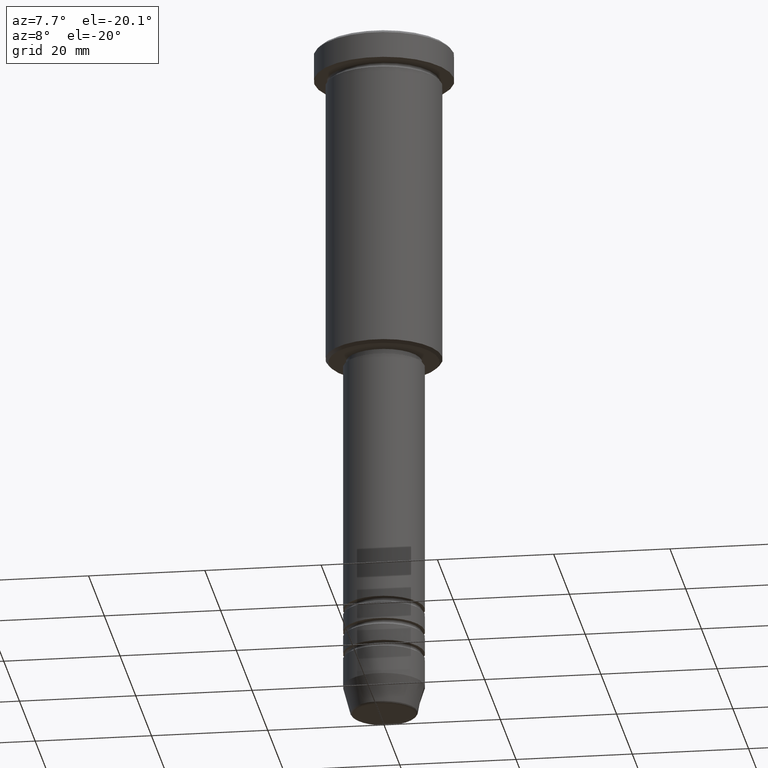
[diagram: clean part render]
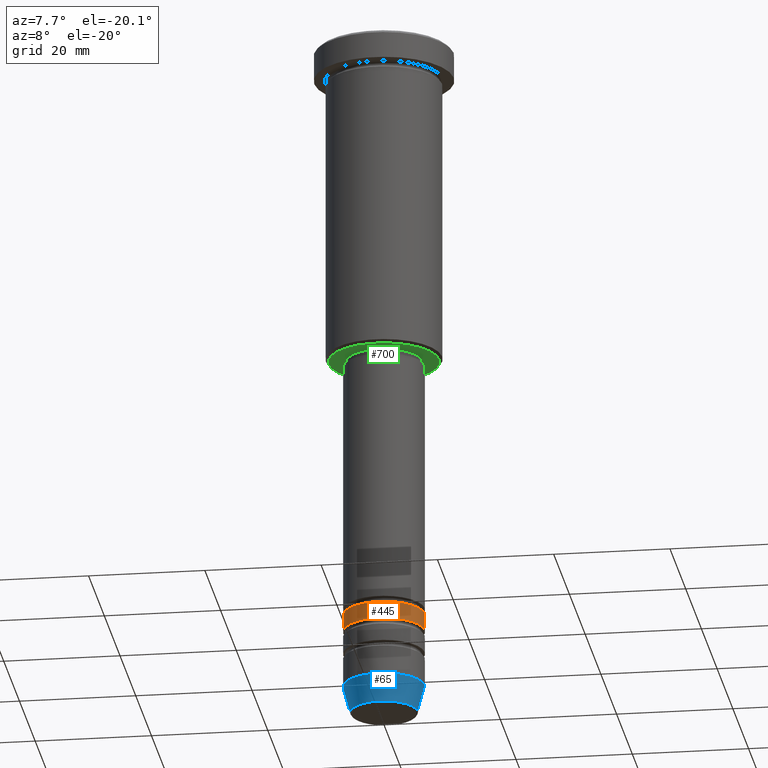
[diagram: same view with three faces highlighted in distinct colors, each labeled with its STEP entity id]
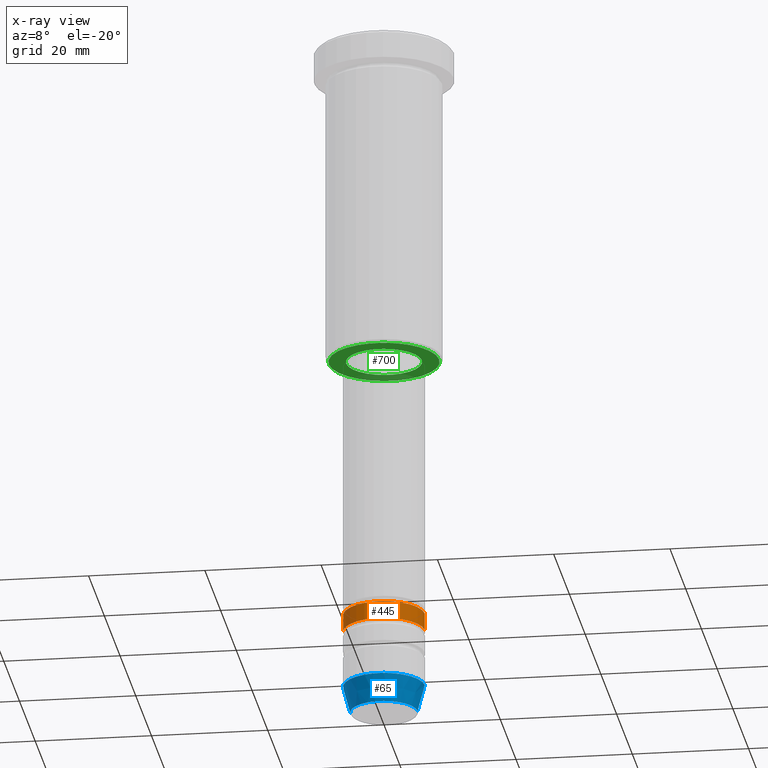
[diagram: x-ray of the same camera — body ghosted, the three highlighted faces saturated]
A machine part, auxiliary view with three faces highlighted in distinct colors.
The next image is the same camera in x-ray (body ghosted, the three faces saturated) — at least one of them is partly hidden behind the body in this view.
Their STEP definitions:

[orange] entity #445 — the highlighted cylindrical surface (partial cylindrical patch) has radius 7 mm, axis along (-0, -0, 1).
#48 = LINE ( 'NONE', #403, #692 ) ;
#76 = AXIS2_PLACEMENT_3D ( 'NONE', #1148, #420, #514 ) ;
#86 = EDGE_CURVE ( 'NONE', #784, #652, #388, .T. ) ;
#195 = DIRECTION ( 'NONE',  ( -0.000000000000000000, -0.000000000000000000, 1.000000000000000000 ) ) ;
#200 = EDGE_CURVE ( 'NONE', #319, #292, #48, .T. ) ;
#241 = CARTESIAN_POINT ( 'NONE',  ( -7.000000000000002665, 8.572527594031475162E-16, -104.9999999999999858 ) ) ;
#272 = CARTESIAN_POINT ( 'NONE',  ( 7.000000000000000000, 0.000000000000000000, -101.9999999999999858 ) ) ;
#292 = VERTEX_POINT ( 'NONE', #272 ) ;
#319 = VERTEX_POINT ( 'NONE', #991 ) ;
#386 = DIRECTION ( 'NONE',  ( 1.000000000000000000, 0.000000000000000000, 0.000000000000000000 ) ) ;
#388 = LINE ( 'NONE', #562, #962 ) ;
#403 = CARTESIAN_POINT ( 'NONE',  ( 7.000000000000000888, 0.000000000000000000, 0.000000000000000000 ) ) ;
#420 = DIRECTION ( 'NONE',  ( -0.000000000000000000, -0.000000000000000000, 1.000000000000000000 ) ) ;
#422 = CARTESIAN_POINT ( 'NONE',  ( 0.000000000000000000, 0.000000000000000000, -101.9999999999999858 ) ) ;
#438 = ORIENTED_EDGE ( 'NONE', *, *, #200, .T. ) ;
#445 = ADVANCED_FACE ( 'NONE', ( #783 ), #496, .T. ) ;
#461 = CARTESIAN_POINT ( 'NONE',  ( -7.000000000000000000, 8.572527594031473190E-16, -101.9999999999999858 ) ) ;
#462 = DIRECTION ( 'NONE',  ( -0.000000000000000000, -0.000000000000000000, 1.000000000000000000 ) ) ;
#496 = CYLINDRICAL_SURFACE ( 'NONE', #76, 7.000000000000000888 ) ;
#514 = DIRECTION ( 'NONE',  ( 1.000000000000000000, 0.000000000000000000, 0.000000000000000000 ) ) ;
#516 = DIRECTION ( 'NONE',  ( 1.000000000000000000, 0.000000000000000000, 0.000000000000000000 ) ) ;
#531 = EDGE_CURVE ( 'NONE', #652, #292, #830, .T. ) ;
#534 = EDGE_LOOP ( 'NONE', ( #906, #993, #438, #682 ) ) ;
#550 = CIRCLE ( 'NONE', #568, 7.000000000000002665 ) ;
#562 = CARTESIAN_POINT ( 'NONE',  ( -7.000000000000000888, 8.572527594031474176E-16, 0.000000000000000000 ) ) ;
#568 = AXIS2_PLACEMENT_3D ( 'NONE', #651, #195, #386 ) ;
#651 = CARTESIAN_POINT ( 'NONE',  ( 0.000000000000000000, 0.000000000000000000, -104.9999999999999858 ) ) ;
#652 = VERTEX_POINT ( 'NONE', #461 ) ;
#682 = ORIENTED_EDGE ( 'NONE', *, *, #531, .F. ) ;
#692 = VECTOR ( 'NONE', #1143, 1000.000000000000000 ) ;
#706 = EDGE_CURVE ( 'NONE', #784, #319, #550, .T. ) ;
#783 = FACE_OUTER_BOUND ( 'NONE', #534, .T. ) ;
#784 = VERTEX_POINT ( 'NONE', #241 ) ;
#793 = DIRECTION ( 'NONE',  ( -0.000000000000000000, -0.000000000000000000, 1.000000000000000000 ) ) ;
#810 = AXIS2_PLACEMENT_3D ( 'NONE', #422, #793, #516 ) ;
#830 = CIRCLE ( 'NONE', #810, 7.000000000000000000 ) ;
#906 = ORIENTED_EDGE ( 'NONE', *, *, #86, .F. ) ;
#962 = VECTOR ( 'NONE', #462, 1000.000000000000000 ) ;
#991 = CARTESIAN_POINT ( 'NONE',  ( 7.000000000000002665, 0.000000000000000000, -104.9999999999999858 ) ) ;
#993 = ORIENTED_EDGE ( 'NONE', *, *, #706, .T. ) ;
#1143 = DIRECTION ( 'NONE',  ( -0.000000000000000000, -0.000000000000000000, 1.000000000000000000 ) ) ;
#1148 = CARTESIAN_POINT ( 'NONE',  ( 0.000000000000000000, 0.000000000000000000, 0.000000000000000000 ) ) ;

[blue] entity #65 — the highlighted conical surface has half-angle 15 deg.
#25 = EDGE_CURVE ( 'NONE', #359, #159, #108, .T. ) ;
#33 = DIRECTION ( 'NONE',  ( -0.000000000000000000, -0.000000000000000000, 1.000000000000000000 ) ) ;
#37 = AXIS2_PLACEMENT_3D ( 'NONE', #892, #714, #611 ) ;
#65 = ADVANCED_FACE ( 'NONE', ( #809 ), #437, .T. ) ;
#104 = CARTESIAN_POINT ( 'NONE',  ( -7.000000000000000888, 8.572527594031474176E-16, -114.9999999999999858 ) ) ;
#108 = CIRCLE ( 'NONE', #37, 7.000000000000000888 ) ;
#159 = VERTEX_POINT ( 'NONE', #982 ) ;
#162 = EDGE_CURVE ( 'NONE', #584, #359, #964, .T. ) ;
#236 = ORIENTED_EDGE ( 'NONE', *, *, #162, .F. ) ;
#270 = EDGE_CURVE ( 'NONE', #484, #159, #602, .T. ) ;
#308 = ORIENTED_EDGE ( 'NONE', *, *, #270, .T. ) ;
#359 = VERTEX_POINT ( 'NONE', #104 ) ;
#437 = CONICAL_SURFACE ( 'NONE', #533, 7.000000000000000888, 0.2617993877991500740 ) ;
#451 = CIRCLE ( 'NONE', #689, 5.759553456999433330 ) ;
#484 = VERTEX_POINT ( 'NONE', #876 ) ;
#507 = CARTESIAN_POINT ( 'NONE',  ( 7.000000000000000888, 0.000000000000000000, -114.9999999999999858 ) ) ;
#533 = AXIS2_PLACEMENT_3D ( 'NONE', #1172, #1086, #816 ) ;
#584 = VERTEX_POINT ( 'NONE', #883 ) ;
#602 = LINE ( 'NONE', #507, #1077 ) ;
#611 = DIRECTION ( 'NONE',  ( 1.000000000000000000, 0.000000000000000000, 0.000000000000000000 ) ) ;
#689 = AXIS2_PLACEMENT_3D ( 'NONE', #1050, #33, #961 ) ;
#693 = DIRECTION ( 'NONE',  ( -0.2588190451025213501, 3.169619151431772337E-17, 0.9659258262890680902 ) ) ;
#714 = DIRECTION ( 'NONE',  ( -0.000000000000000000, -0.000000000000000000, 1.000000000000000000 ) ) ;
#787 = VECTOR ( 'NONE', #693, 1000.000000000000000 ) ;
#799 = EDGE_LOOP ( 'NONE', ( #236, #1024, #308, #950 ) ) ;
#809 = FACE_OUTER_BOUND ( 'NONE', #799, .T. ) ;
#816 = DIRECTION ( 'NONE',  ( 1.000000000000000000, 0.000000000000000000, 0.000000000000000000 ) ) ;
#876 = CARTESIAN_POINT ( 'NONE',  ( 5.759553456999433330, 0.000000000000000000, -119.6294095225512564 ) ) ;
#882 = CARTESIAN_POINT ( 'NONE',  ( -7.000000000000000888, 8.572527594031474176E-16, -114.9999999999999858 ) ) ;
#883 = CARTESIAN_POINT ( 'NONE',  ( -5.759553456999433330, 7.812973149831950787E-16, -119.6294095225512564 ) ) ;
#889 = DIRECTION ( 'NONE',  ( 0.2588190451025213501, 0.000000000000000000, 0.9659258262890680902 ) ) ;
#892 = CARTESIAN_POINT ( 'NONE',  ( 0.000000000000000000, 0.000000000000000000, -114.9999999999999858 ) ) ;
#896 = EDGE_CURVE ( 'NONE', #584, #484, #451, .T. ) ;
#950 = ORIENTED_EDGE ( 'NONE', *, *, #25, .F. ) ;
#961 = DIRECTION ( 'NONE',  ( 1.000000000000000000, 0.000000000000000000, 0.000000000000000000 ) ) ;
#964 = LINE ( 'NONE', #882, #787 ) ;
#982 = CARTESIAN_POINT ( 'NONE',  ( 7.000000000000000888, 0.000000000000000000, -114.9999999999999858 ) ) ;
#1024 = ORIENTED_EDGE ( 'NONE', *, *, #896, .T. ) ;
#1050 = CARTESIAN_POINT ( 'NONE',  ( 0.000000000000000000, 0.000000000000000000, -119.6294095225512564 ) ) ;
#1077 = VECTOR ( 'NONE', #889, 1000.000000000000000 ) ;
#1086 = DIRECTION ( 'NONE',  ( -0.000000000000000000, -0.000000000000000000, 1.000000000000000000 ) ) ;
#1172 = CARTESIAN_POINT ( 'NONE',  ( 0.000000000000000000, 0.000000000000000000, -114.9999999999999858 ) ) ;

[green] entity #700 — the highlighted planar face has unit normal (0, 0, -1).
#1 = AXIS2_PLACEMENT_3D ( 'NONE', #233, #309, #1137 ) ;
#22 = VERTEX_POINT ( 'NONE', #523 ) ;
#24 = CARTESIAN_POINT ( 'NONE',  ( 0.000000000000000000, 0.000000000000000000, -56.00000000000000711 ) ) ;
#52 = AXIS2_PLACEMENT_3D ( 'NONE', #430, #1152, #153 ) ;
#72 = CARTESIAN_POINT ( 'NONE',  ( 6.500000000000000000, 0.000000000000000000, -56.00000000000000711 ) ) ;
#84 = CARTESIAN_POINT ( 'NONE',  ( 0.000000000000000000, 9.999999999999998224, -56.00000000000000711 ) ) ;
#147 = EDGE_LOOP ( 'NONE', ( #1084, #938 ) ) ;
#149 = AXIS2_PLACEMENT_3D ( 'NONE', #404, #878, #1149 ) ;
#153 = DIRECTION ( 'NONE',  ( -1.000000000000000000, 0.000000000000000000, 0.000000000000000000 ) ) ;
#175 = PLANE ( 'NONE',  #370 ) ;
#202 = DIRECTION ( 'NONE',  ( -1.000000000000000000, 0.000000000000000000, -0.000000000000000000 ) ) ;
#233 = CARTESIAN_POINT ( 'NONE',  ( 0.000000000000000000, 0.000000000000000000, -56.00000000000000711 ) ) ;
#235 = CIRCLE ( 'NONE', #52, 9.499999999999980460 ) ;
#269 = FACE_BOUND ( 'NONE', #147, .T. ) ;
#282 = FACE_OUTER_BOUND ( 'NONE', #1003, .T. ) ;
#297 = CARTESIAN_POINT ( 'NONE',  ( -9.499999999999980460, 1.194030629168668089E-15, -56.00000000000000711 ) ) ;
#307 = DIRECTION ( 'NONE',  ( -1.000000000000000000, 0.000000000000000000, 0.000000000000000000 ) ) ;
#309 = DIRECTION ( 'NONE',  ( -0.000000000000000000, -0.000000000000000000, 1.000000000000000000 ) ) ;
#370 = AXIS2_PLACEMENT_3D ( 'NONE', #84, #860, #202 ) ;
#404 = CARTESIAN_POINT ( 'NONE',  ( 0.000000000000000000, 0.000000000000000000, -56.00000000000000711 ) ) ;
#430 = CARTESIAN_POINT ( 'NONE',  ( 0.000000000000000000, 0.000000000000000000, -56.00000000000000711 ) ) ;
#453 = CIRCLE ( 'NONE', #1, 6.500000000000000000 ) ;
#468 = AXIS2_PLACEMENT_3D ( 'NONE', #24, #771, #307 ) ;
#519 = EDGE_CURVE ( 'NONE', #22, #1028, #673, .T. ) ;
#523 = CARTESIAN_POINT ( 'NONE',  ( -6.500000000000000000, 7.960204194457795477E-16, -56.00000000000000711 ) ) ;
#589 = ORIENTED_EDGE ( 'NONE', *, *, #914, .T. ) ;
#605 = ORIENTED_EDGE ( 'NONE', *, *, #1058, .T. ) ;
#673 = CIRCLE ( 'NONE', #149, 6.500000000000000000 ) ;
#698 = CARTESIAN_POINT ( 'NONE',  ( 9.499999999999980460, 0.000000000000000000, -56.00000000000000711 ) ) ;
#700 = ADVANCED_FACE ( 'NONE', ( #282, #269 ), #175, .T. ) ;
#771 = DIRECTION ( 'NONE',  ( 0.000000000000000000, 0.000000000000000000, -1.000000000000000000 ) ) ;
#860 = DIRECTION ( 'NONE',  ( 0.000000000000000000, 0.000000000000000000, -1.000000000000000000 ) ) ;
#878 = DIRECTION ( 'NONE',  ( -0.000000000000000000, -0.000000000000000000, 1.000000000000000000 ) ) ;
#914 = EDGE_CURVE ( 'NONE', #1162, #1059, #1132, .T. ) ;
#925 = EDGE_CURVE ( 'NONE', #1028, #22, #453, .T. ) ;
#938 = ORIENTED_EDGE ( 'NONE', *, *, #519, .T. ) ;
#1003 = EDGE_LOOP ( 'NONE', ( #605, #589 ) ) ;
#1028 = VERTEX_POINT ( 'NONE', #72 ) ;
#1058 = EDGE_CURVE ( 'NONE', #1059, #1162, #235, .T. ) ;
#1059 = VERTEX_POINT ( 'NONE', #698 ) ;
#1084 = ORIENTED_EDGE ( 'NONE', *, *, #925, .T. ) ;
#1132 = CIRCLE ( 'NONE', #468, 9.499999999999980460 ) ;
#1137 = DIRECTION ( 'NONE',  ( 1.000000000000000000, 0.000000000000000000, 0.000000000000000000 ) ) ;
#1149 = DIRECTION ( 'NONE',  ( 1.000000000000000000, 0.000000000000000000, 0.000000000000000000 ) ) ;
#1152 = DIRECTION ( 'NONE',  ( 0.000000000000000000, 0.000000000000000000, -1.000000000000000000 ) ) ;
#1162 = VERTEX_POINT ( 'NONE', #297 ) ;